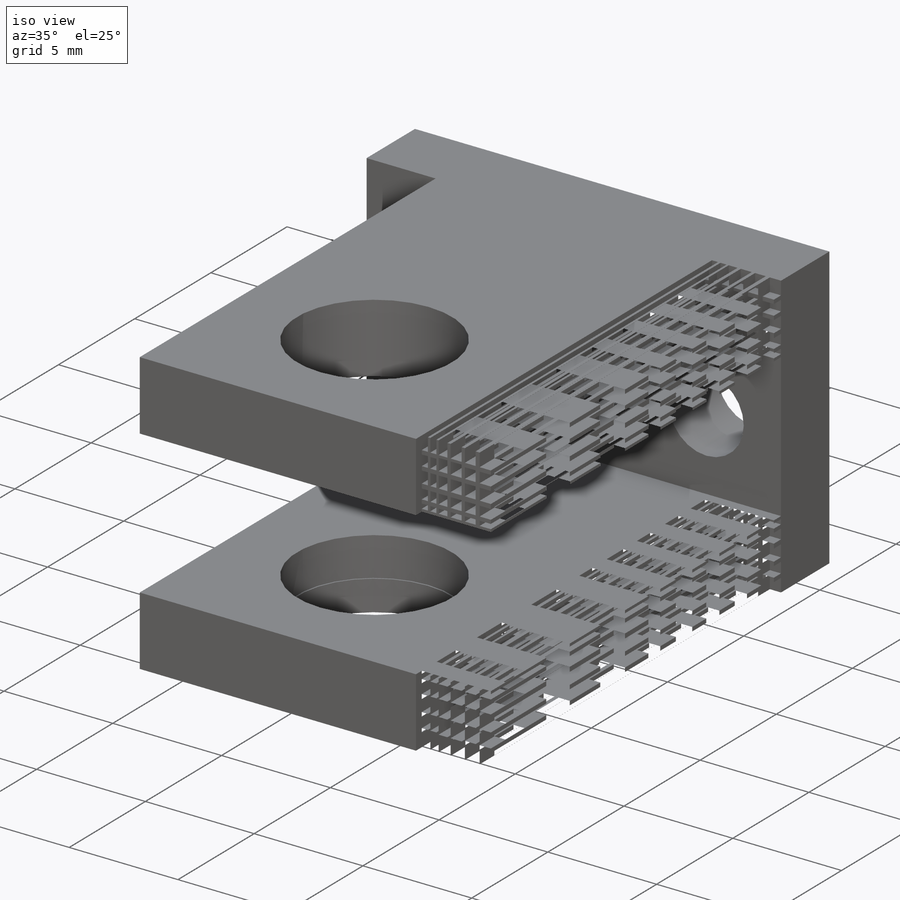
[diagram: iso view]
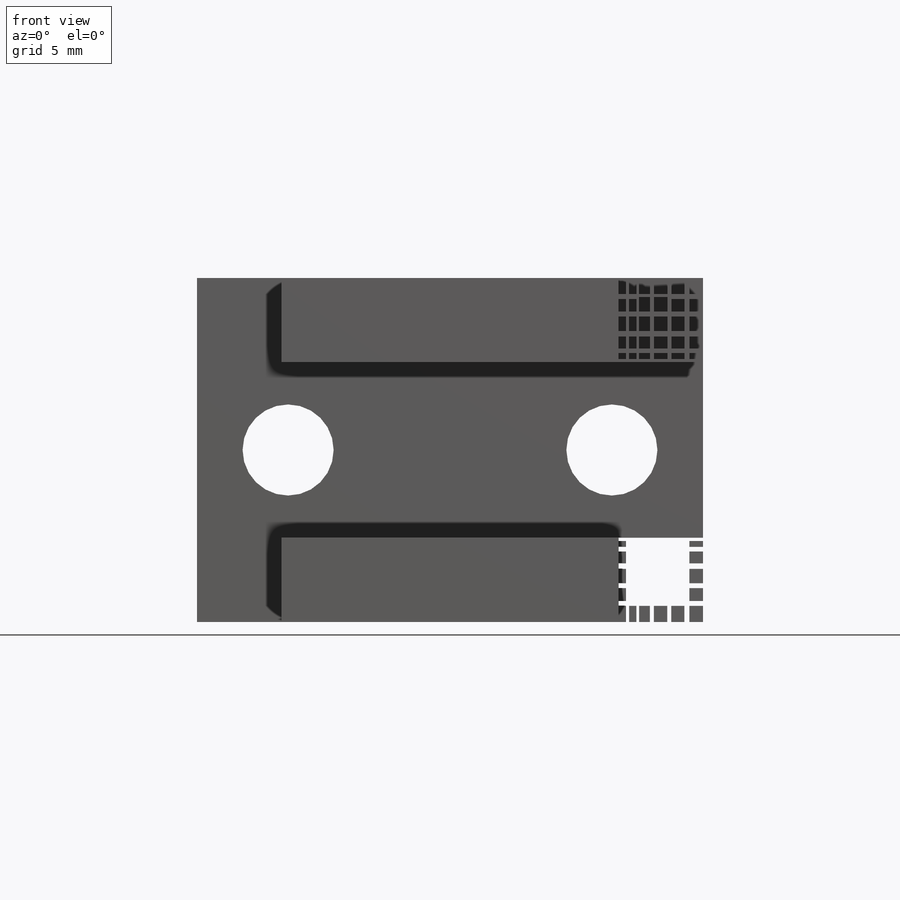
[diagram: front view]
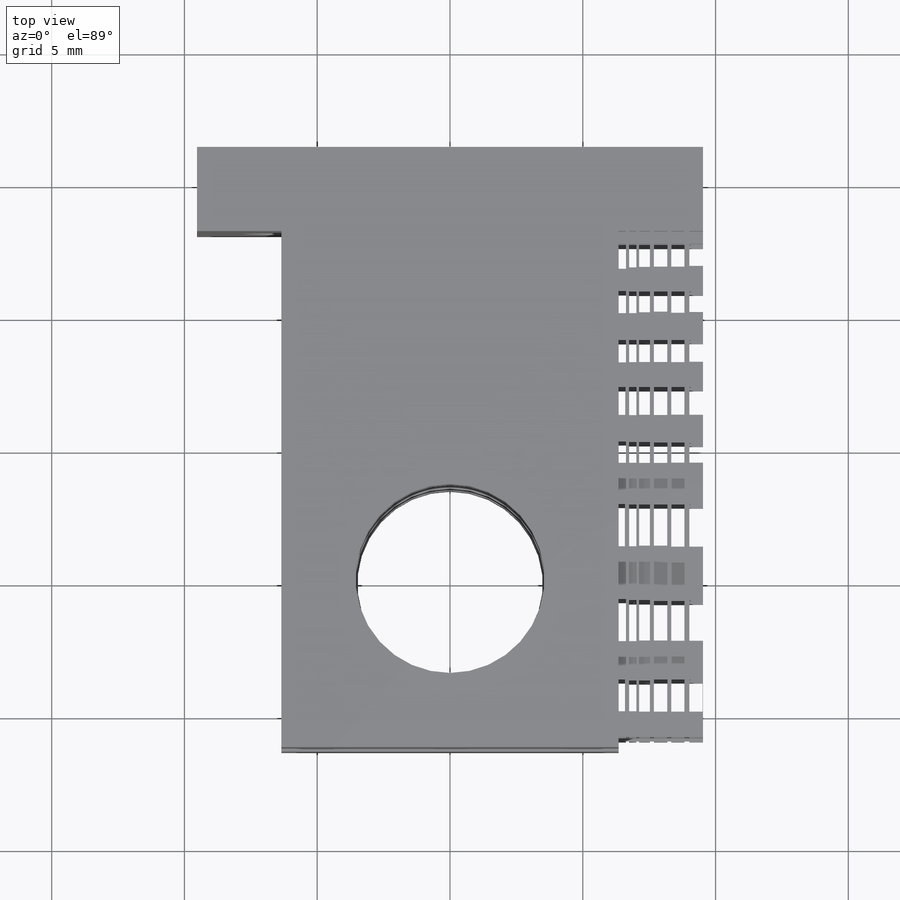
[diagram: top view]
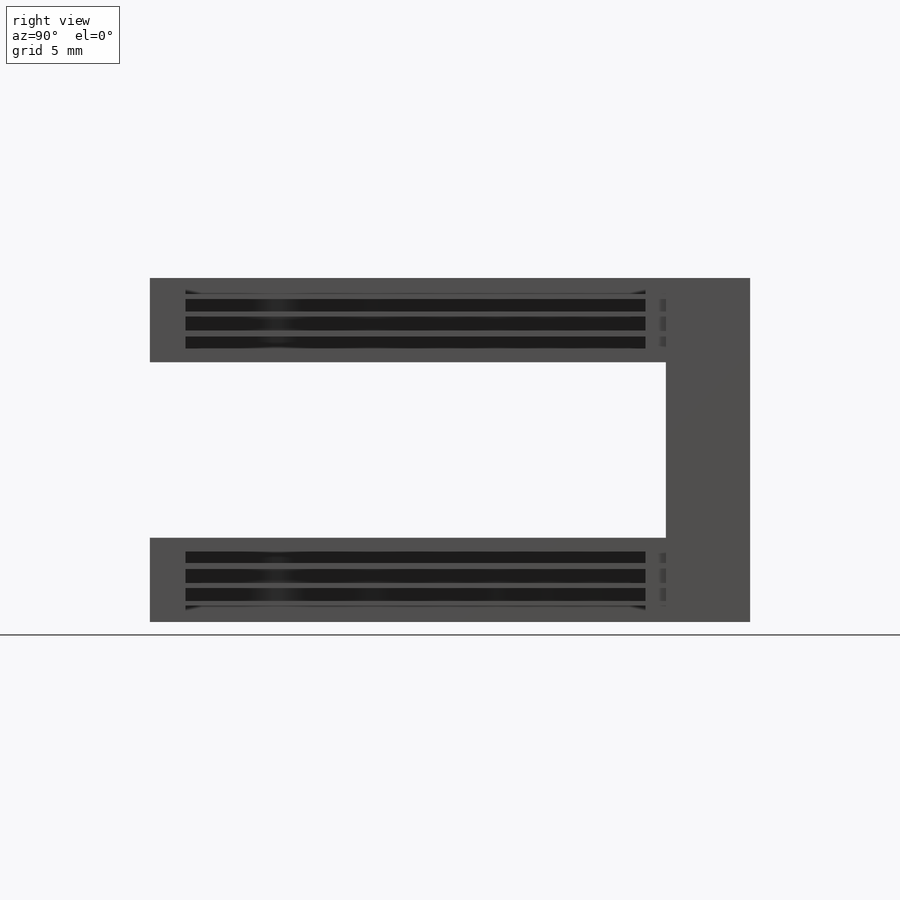
[diagram: right view]
SOLIDWORKS PART (.sldprt)
format: sldprt  version: not decoded by parser v0  size: 2,455,552 bytes
history: native  units: mm
features: sketch x13, extrude x7, plane x2, hole x2, cut_extrude x2, material x1, pattern_linear x1, mirror x1 (+16 scaffold rows collapsed)
feature tree (45):
  scaffold x16  (default folders/planes/origin — collapsed)
  material  "Material <not specified>"
  plane  "Plane1"
  sketch  "Sketch1"  dims[D1=7.112mm]
  extrude  "Boss-Extrude1"  Depth=3.175mm
  sketch  "Sketch2"
  extrude  "Boss-Extrude2"  Depth=3.175mm
  sketch  "Sketch3"
  extrude  "Boss-Extrude3"  Depth=3.175mm
  sketch  "Sketch4"
  extrude  "Boss-Extrude4"  Depth=6.604mm
  sketch  "Sketch5"  dims[D1=7.112mm]
  extrude  "Boss-Extrude5"  Depth=1.778mm
  sketch  "Sketch6"
  extrude  "Boss-Extrude6"  Depth=1.397mm
  hole  "Hole1"  Diameter=3.429mm Depth=22.606025mm
  sketch  "Sketch11"
  sketch  "Sketch10"  dims[Diameter=3.429mm Depth=~22.606025mm]
  hole  "Hole2"  Diameter=3.429mm Depth=22.606025mm
  sketch  "Sketch13"
  sketch  "Sketch12"  dims[Diameter=3.429mm Depth=~22.606025mm]
  sketch  "Sketch16"
  extrude  "Boss-Extrude8"  Depth=19.05mm
  sketch  "Sketch17"
  cut_extrude  "Cut-Extrude2"  Depth=3.81mm
  sketch  "Sketch18"
  cut_extrude  "Cut-Extrude3"  Depth=2.413mm
  pattern_linear  "LPattern4"  Count1=17 Count2=1 Spacing1=1.016mm Spacing2=50mm
  plane  "Plane2"  Offset=6.477mm
  mirror  "Mirror1"
decode coverage: 16 of 26 modeling features carry decoded parameters
note: ~ marks probable driven/reference dimensions
note: suppression state not decoded; provenance and decode notes live in map.json
